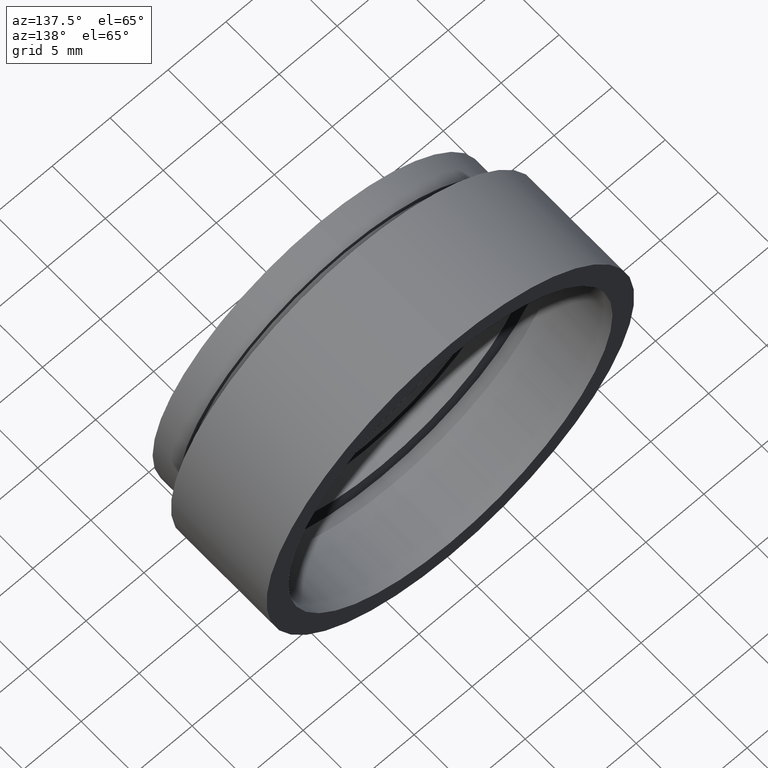
[diagram: clean part render]
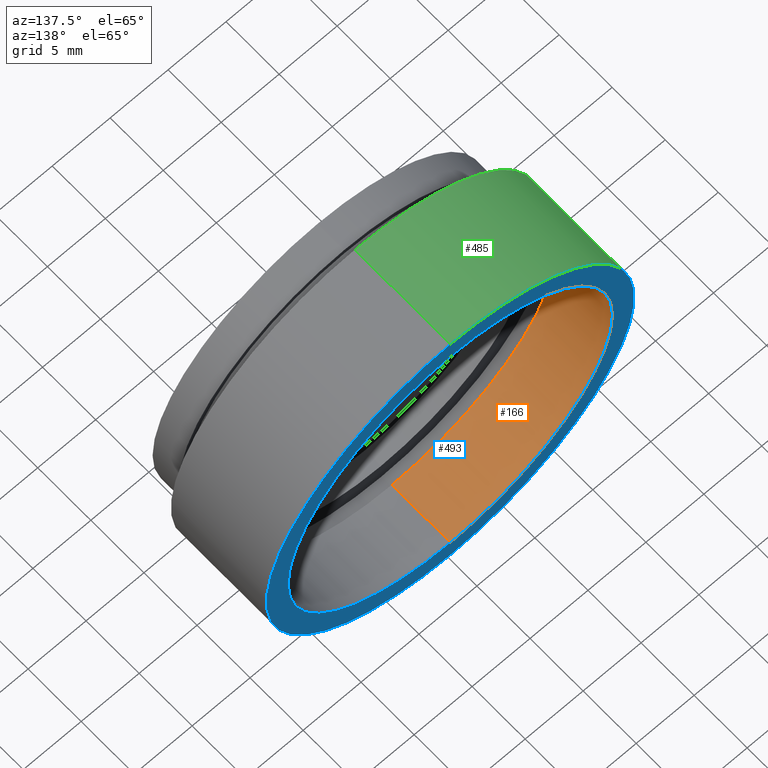
[diagram: same view with three faces highlighted in distinct colors, each labeled with its STEP entity id]
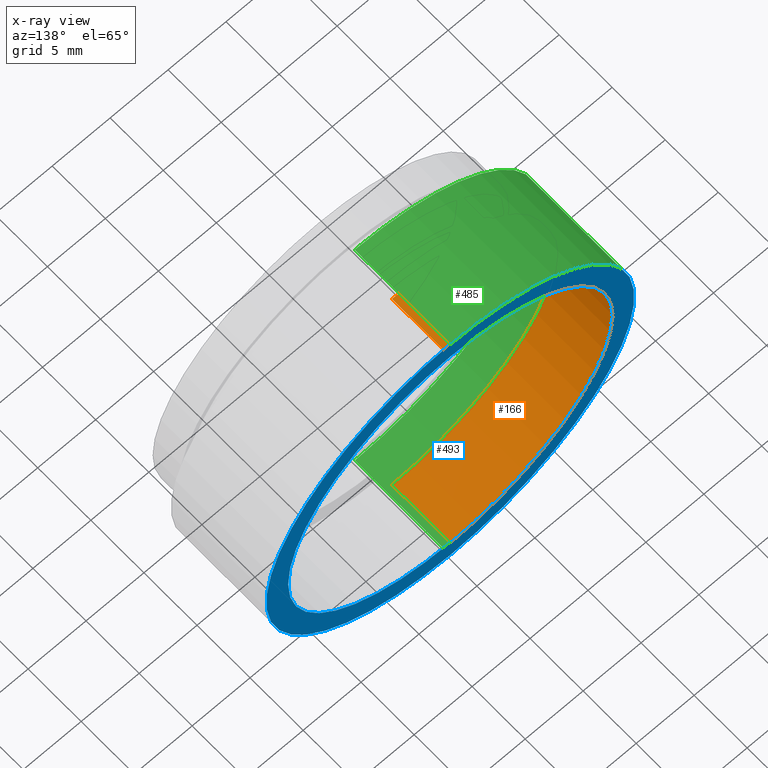
[diagram: x-ray of the same camera — body ghosted, the three highlighted faces saturated]
A machine part, auxiliary view with three faces highlighted in distinct colors.
The next image is the same camera in x-ray (body ghosted, the three faces saturated) — at least one of them is partly hidden behind the body in this view.
Their STEP definitions:

[orange] entity #166 — the highlighted cylindrical surface (partial cylindrical patch) has radius 14 mm, axis along (-0, -1, -0).
#23 = CARTESIAN_POINT ( 'NONE',  ( 1.714505518806294600E-015, 0.0000000000000000000, 14.00000000000000000 ) ) ;
#31 = VERTEX_POINT ( 'NONE', #633 ) ;
#71 = ORIENTED_EDGE ( 'NONE', *, *, #140, .T. ) ;
#79 = EDGE_CURVE ( 'NONE', #31, #719, #240, .T. ) ;
#99 = VERTEX_POINT ( 'NONE', #412 ) ;
#109 = EDGE_LOOP ( 'NONE', ( #720, #253, #71, #134 ) ) ;
#134 = ORIENTED_EDGE ( 'NONE', *, *, #180, .F. ) ;
#140 = EDGE_CURVE ( 'NONE', #99, #416, #692, .T. ) ;
#147 = DIRECTION ( 'NONE',  ( -0.0000000000000000000, -1.000000000000000000, -0.0000000000000000000 ) ) ;
#166 = ADVANCED_FACE ( 'NONE', ( #544 ), #238, .F. ) ;
#180 = EDGE_CURVE ( 'NONE', #719, #416, #664, .T. ) ;
#189 = CARTESIAN_POINT ( 'NONE',  ( 0.0000000000000000000, 12.50000000000000000, -14.00000000000000000 ) ) ;
#208 = CARTESIAN_POINT ( 'NONE',  ( 0.0000000000000000000, 0.0000000000000000000, 0.0000000000000000000 ) ) ;
#212 = CARTESIAN_POINT ( 'NONE',  ( 0.0000000000000000000, 7.000000000000000000, 0.0000000000000000000 ) ) ;
#238 = CYLINDRICAL_SURFACE ( 'NONE', #594, 14.00000000000000000 ) ;
#240 = CIRCLE ( 'NONE', #543, 14.00000000000000000 ) ;
#248 = DIRECTION ( 'NONE',  ( -0.0000000000000000000, -1.000000000000000000, -0.0000000000000000000 ) ) ;
#253 = ORIENTED_EDGE ( 'NONE', *, *, #620, .T. ) ;
#261 = AXIS2_PLACEMENT_3D ( 'NONE', #212, #147, #666 ) ;
#269 = CARTESIAN_POINT ( 'NONE',  ( 0.0000000000000000000, 0.0000000000000000000, -14.00000000000000000 ) ) ;
#295 = DIRECTION ( 'NONE',  ( -0.0000000000000000000, -1.000000000000000000, -0.0000000000000000000 ) ) ;
#355 = VECTOR ( 'NONE', #248, 1000.000000000000000 ) ;
#371 = DIRECTION ( 'NONE',  ( 0.0000000000000000000, 0.0000000000000000000, -1.000000000000000000 ) ) ;
#401 = LINE ( 'NONE', #23, #355 ) ;
#408 = DIRECTION ( 'NONE',  ( 0.0000000000000000000, 0.0000000000000000000, -1.000000000000000000 ) ) ;
#412 = CARTESIAN_POINT ( 'NONE',  ( 1.714505518806294600E-015, 7.000000000000000000, 14.00000000000000000 ) ) ;
#416 = VERTEX_POINT ( 'NONE', #557 ) ;
#480 = DIRECTION ( 'NONE',  ( -0.0000000000000000000, -1.000000000000000000, -0.0000000000000000000 ) ) ;
#543 = AXIS2_PLACEMENT_3D ( 'NONE', #575, #295, #408 ) ;
#544 = FACE_OUTER_BOUND ( 'NONE', #109, .T. ) ;
#557 = CARTESIAN_POINT ( 'NONE',  ( 0.0000000000000000000, 7.000000000000000000, -14.00000000000000000 ) ) ;
#571 = VECTOR ( 'NONE', #480, 1000.000000000000000 ) ;
#575 = CARTESIAN_POINT ( 'NONE',  ( 0.0000000000000000000, 12.50000000000000000, 0.0000000000000000000 ) ) ;
#594 = AXIS2_PLACEMENT_3D ( 'NONE', #208, #597, #371 ) ;
#597 = DIRECTION ( 'NONE',  ( -0.0000000000000000000, -1.000000000000000000, -0.0000000000000000000 ) ) ;
#620 = EDGE_CURVE ( 'NONE', #31, #99, #401, .T. ) ;
#633 = CARTESIAN_POINT ( 'NONE',  ( 1.714505518806294600E-015, 12.50000000000000000, 14.00000000000000000 ) ) ;
#664 = LINE ( 'NONE', #269, #571 ) ;
#666 = DIRECTION ( 'NONE',  ( 0.0000000000000000000, 0.0000000000000000000, -1.000000000000000000 ) ) ;
#692 = CIRCLE ( 'NONE', #261, 14.00000000000000000 ) ;
#719 = VERTEX_POINT ( 'NONE', #189 ) ;
#720 = ORIENTED_EDGE ( 'NONE', *, *, #79, .F. ) ;

[blue] entity #493 — the highlighted planar face has unit normal (0, 1, 0).
#31 = VERTEX_POINT ( 'NONE', #633 ) ;
#59 = CIRCLE ( 'NONE', #280, 14.00000000000000000 ) ;
#66 = EDGE_CURVE ( 'NONE', #582, #708, #348, .T. ) ;
#72 = DIRECTION ( 'NONE',  ( -0.0000000000000000000, -1.000000000000000000, -0.0000000000000000000 ) ) ;
#74 = DIRECTION ( 'NONE',  ( 0.0000000000000000000, 0.0000000000000000000, -1.000000000000000000 ) ) ;
#79 = EDGE_CURVE ( 'NONE', #31, #719, #240, .T. ) ;
#100 = ORIENTED_EDGE ( 'NONE', *, *, #66, .F. ) ;
#131 = ORIENTED_EDGE ( 'NONE', *, *, #556, .T. ) ;
#136 = DIRECTION ( 'NONE',  ( 0.0000000000000000000, 0.0000000000000000000, -1.000000000000000000 ) ) ;
#145 = AXIS2_PLACEMENT_3D ( 'NONE', #524, #72, #74 ) ;
#156 = EDGE_LOOP ( 'NONE', ( #100, #358 ) ) ;
#182 = DIRECTION ( 'NONE',  ( -0.0000000000000000000, -1.000000000000000000, -0.0000000000000000000 ) ) ;
#187 = AXIS2_PLACEMENT_3D ( 'NONE', #646, #182, #576 ) ;
#189 = CARTESIAN_POINT ( 'NONE',  ( 0.0000000000000000000, 12.50000000000000000, -14.00000000000000000 ) ) ;
#209 = ORIENTED_EDGE ( 'NONE', *, *, #79, .T. ) ;
#239 = CARTESIAN_POINT ( 'NONE',  ( 15.87500000000000000, 12.50000000000000000, 0.0000000000000000000 ) ) ;
#240 = CIRCLE ( 'NONE', #543, 14.00000000000000000 ) ;
#280 = AXIS2_PLACEMENT_3D ( 'NONE', #415, #468, #136 ) ;
#295 = DIRECTION ( 'NONE',  ( -0.0000000000000000000, -1.000000000000000000, -0.0000000000000000000 ) ) ;
#316 = FACE_OUTER_BOUND ( 'NONE', #156, .T. ) ;
#329 = EDGE_LOOP ( 'NONE', ( #131, #209 ) ) ;
#348 = CIRCLE ( 'NONE', #145, 15.87500000000000000 ) ;
#358 = ORIENTED_EDGE ( 'NONE', *, *, #608, .F. ) ;
#398 = PLANE ( 'NONE',  #442 ) ;
#408 = DIRECTION ( 'NONE',  ( 0.0000000000000000000, 0.0000000000000000000, -1.000000000000000000 ) ) ;
#415 = CARTESIAN_POINT ( 'NONE',  ( 0.0000000000000000000, 12.50000000000000000, 0.0000000000000000000 ) ) ;
#442 = AXIS2_PLACEMENT_3D ( 'NONE', #239, #624, #454 ) ;
#454 = DIRECTION ( 'NONE',  ( 0.0000000000000000000, -0.0000000000000000000, 1.000000000000000000 ) ) ;
#468 = DIRECTION ( 'NONE',  ( -0.0000000000000000000, -1.000000000000000000, -0.0000000000000000000 ) ) ;
#493 = ADVANCED_FACE ( 'NONE', ( #655, #316 ), #398, .T. ) ;
#518 = CARTESIAN_POINT ( 'NONE',  ( 1.944126793646423200E-015, 12.50000000000000000, 15.87500000000000000 ) ) ;
#524 = CARTESIAN_POINT ( 'NONE',  ( 0.0000000000000000000, 12.50000000000000000, 0.0000000000000000000 ) ) ;
#543 = AXIS2_PLACEMENT_3D ( 'NONE', #575, #295, #408 ) ;
#556 = EDGE_CURVE ( 'NONE', #719, #31, #59, .T. ) ;
#575 = CARTESIAN_POINT ( 'NONE',  ( 0.0000000000000000000, 12.50000000000000000, 0.0000000000000000000 ) ) ;
#576 = DIRECTION ( 'NONE',  ( 0.0000000000000000000, 0.0000000000000000000, -1.000000000000000000 ) ) ;
#582 = VERTEX_POINT ( 'NONE', #586 ) ;
#586 = CARTESIAN_POINT ( 'NONE',  ( 0.0000000000000000000, 12.50000000000000000, -15.87500000000000000 ) ) ;
#608 = EDGE_CURVE ( 'NONE', #708, #582, #613, .T. ) ;
#613 = CIRCLE ( 'NONE', #187, 15.87500000000000000 ) ;
#624 = DIRECTION ( 'NONE',  ( 0.0000000000000000000, 1.000000000000000000, 0.0000000000000000000 ) ) ;
#633 = CARTESIAN_POINT ( 'NONE',  ( 1.714505518806294600E-015, 12.50000000000000000, 14.00000000000000000 ) ) ;
#646 = CARTESIAN_POINT ( 'NONE',  ( 0.0000000000000000000, 12.50000000000000000, 0.0000000000000000000 ) ) ;
#655 = FACE_BOUND ( 'NONE', #329, .T. ) ;
#708 = VERTEX_POINT ( 'NONE', #518 ) ;
#719 = VERTEX_POINT ( 'NONE', #189 ) ;

[green] entity #485 — the highlighted cylindrical surface (partial cylindrical patch) has radius 15.875 mm, axis along (-0, -1, -0).
#5 = ORIENTED_EDGE ( 'NONE', *, *, #452, .T. ) ;
#69 = DIRECTION ( 'NONE',  ( 0.0000000000000000000, 0.0000000000000000000, -1.000000000000000000 ) ) ;
#116 = CARTESIAN_POINT ( 'NONE',  ( 0.0000000000000000000, 3.500000000000000000, 0.0000000000000000000 ) ) ;
#139 = CYLINDRICAL_SURFACE ( 'NONE', #243, 15.87500000000000000 ) ;
#174 = FACE_OUTER_BOUND ( 'NONE', #319, .T. ) ;
#175 = CARTESIAN_POINT ( 'NONE',  ( 0.0000000000000000000, 3.500000000000000000, -15.87500000000000000 ) ) ;
#182 = DIRECTION ( 'NONE',  ( -0.0000000000000000000, -1.000000000000000000, -0.0000000000000000000 ) ) ;
#187 = AXIS2_PLACEMENT_3D ( 'NONE', #646, #182, #576 ) ;
#221 = CIRCLE ( 'NONE', #579, 15.87500000000000000 ) ;
#243 = AXIS2_PLACEMENT_3D ( 'NONE', #393, #567, #69 ) ;
#288 = DIRECTION ( 'NONE',  ( 0.0000000000000000000, 0.0000000000000000000, -1.000000000000000000 ) ) ;
#296 = CARTESIAN_POINT ( 'NONE',  ( 1.944126793646423200E-015, 0.0000000000000000000, 15.87500000000000000 ) ) ;
#307 = VECTOR ( 'NONE', #343, 1000.000000000000000 ) ;
#319 = EDGE_LOOP ( 'NONE', ( #350, #618, #5, #687 ) ) ;
#343 = DIRECTION ( 'NONE',  ( -0.0000000000000000000, -1.000000000000000000, -0.0000000000000000000 ) ) ;
#350 = ORIENTED_EDGE ( 'NONE', *, *, #585, .F. ) ;
#393 = CARTESIAN_POINT ( 'NONE',  ( 0.0000000000000000000, 0.0000000000000000000, 0.0000000000000000000 ) ) ;
#436 = VERTEX_POINT ( 'NONE', #175 ) ;
#438 = LINE ( 'NONE', #627, #307 ) ;
#452 = EDGE_CURVE ( 'NONE', #582, #436, #438, .T. ) ;
#466 = DIRECTION ( 'NONE',  ( -0.0000000000000000000, -1.000000000000000000, -0.0000000000000000000 ) ) ;
#473 = VERTEX_POINT ( 'NONE', #574 ) ;
#485 = ADVANCED_FACE ( 'NONE', ( #174 ), #139, .T. ) ;
#518 = CARTESIAN_POINT ( 'NONE',  ( 1.944126793646423200E-015, 12.50000000000000000, 15.87500000000000000 ) ) ;
#520 = EDGE_CURVE ( 'NONE', #473, #436, #221, .T. ) ;
#537 = LINE ( 'NONE', #296, #707 ) ;
#567 = DIRECTION ( 'NONE',  ( -0.0000000000000000000, -1.000000000000000000, -0.0000000000000000000 ) ) ;
#574 = CARTESIAN_POINT ( 'NONE',  ( 1.944126793646423200E-015, 3.500000000000000000, 15.87500000000000000 ) ) ;
#576 = DIRECTION ( 'NONE',  ( 0.0000000000000000000, 0.0000000000000000000, -1.000000000000000000 ) ) ;
#579 = AXIS2_PLACEMENT_3D ( 'NONE', #116, #621, #288 ) ;
#582 = VERTEX_POINT ( 'NONE', #586 ) ;
#585 = EDGE_CURVE ( 'NONE', #708, #473, #537, .T. ) ;
#586 = CARTESIAN_POINT ( 'NONE',  ( 0.0000000000000000000, 12.50000000000000000, -15.87500000000000000 ) ) ;
#608 = EDGE_CURVE ( 'NONE', #708, #582, #613, .T. ) ;
#613 = CIRCLE ( 'NONE', #187, 15.87500000000000000 ) ;
#618 = ORIENTED_EDGE ( 'NONE', *, *, #608, .T. ) ;
#621 = DIRECTION ( 'NONE',  ( -0.0000000000000000000, -1.000000000000000000, -0.0000000000000000000 ) ) ;
#627 = CARTESIAN_POINT ( 'NONE',  ( 0.0000000000000000000, 0.0000000000000000000, -15.87500000000000000 ) ) ;
#646 = CARTESIAN_POINT ( 'NONE',  ( 0.0000000000000000000, 12.50000000000000000, 0.0000000000000000000 ) ) ;
#687 = ORIENTED_EDGE ( 'NONE', *, *, #520, .F. ) ;
#707 = VECTOR ( 'NONE', #466, 1000.000000000000000 ) ;
#708 = VERTEX_POINT ( 'NONE', #518 ) ;